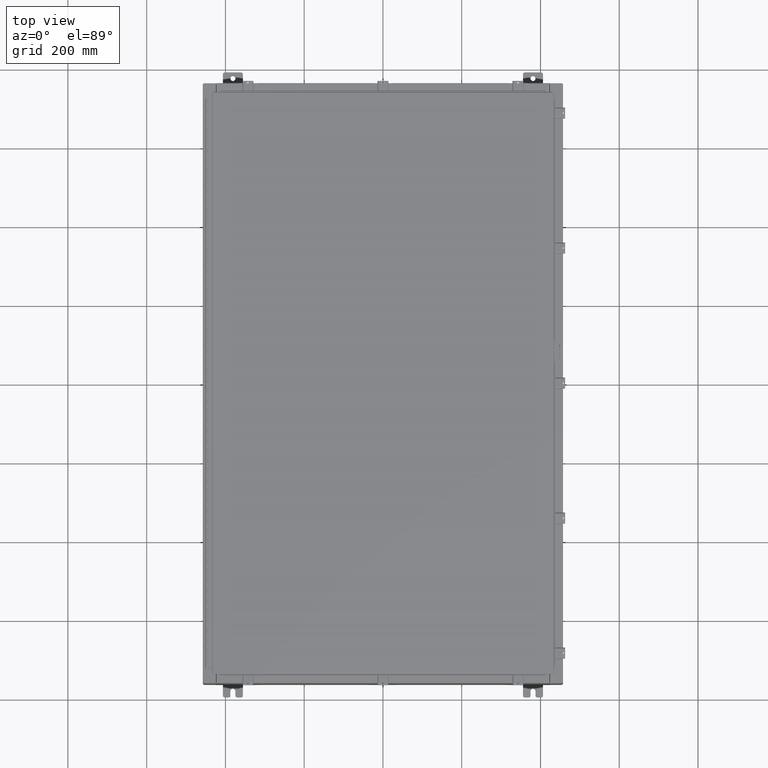
[diagram: clean part render]
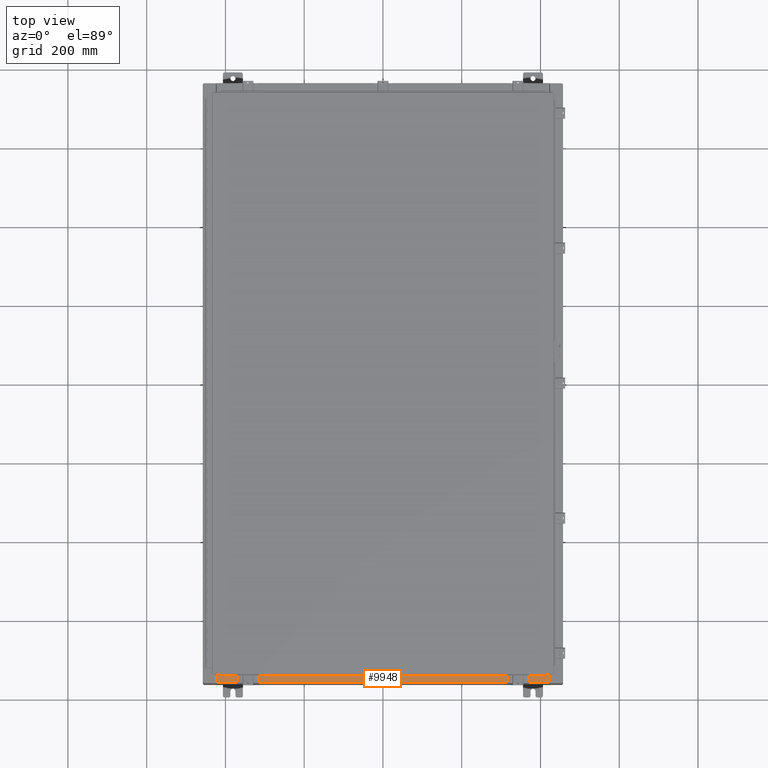
[diagram: same view with one face highlighted and labeled with its STEP entity id]
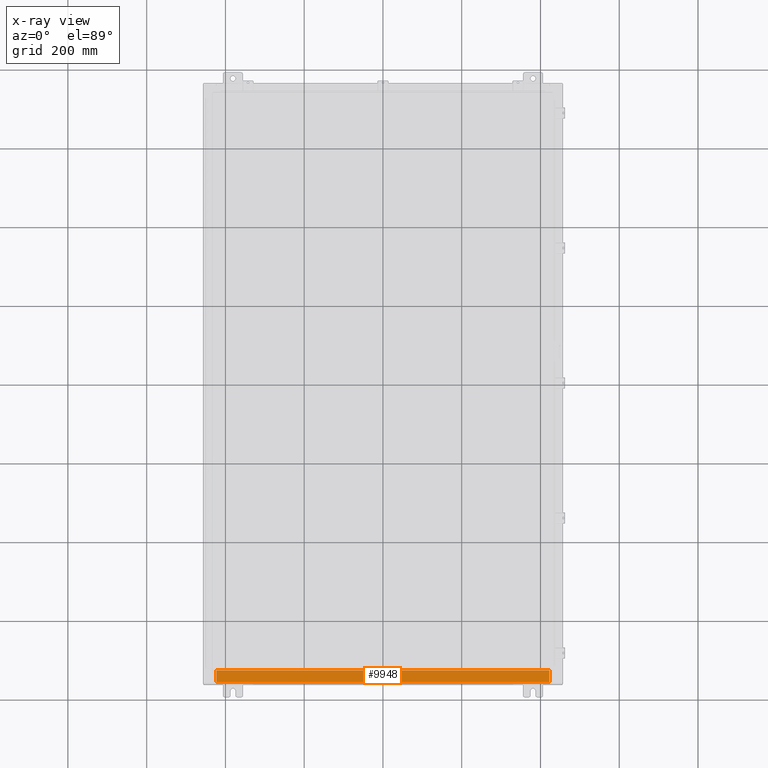
[diagram: x-ray of the same camera — body ghosted, the highlighted face saturated]
A machine part, top view. The second image highlights one B-rep face of the part: STEP entity #9948.
The next image is the same camera in x-ray: the body ghosted, the highlighted face saturated — about 0% of this face is hidden behind the body in this view.
In plain terms, the highlighted planar face has unit normal (-0, -0, 1).
Its self-contained STEP definition (entity closure, byte-faithful):
#523 = DIRECTION ( 'NONE',  ( -1.000000000000000000, 0.0000000000000000000, 0.0000000000000000000 ) ) ;
#979 = LINE ( 'NONE', #23413, #39793 ) ;
#4184 = ORIENTED_EDGE ( 'NONE', *, *, #41030, .F. ) ;
#6513 = VERTEX_POINT ( 'NONE', #36920 ) ;
#9948 = ADVANCED_FACE ( 'NONE', ( #59371 ), #20638, .T. ) ;
#11362 = LINE ( 'NONE', #38567, #45652 ) ;
#11691 = CARTESIAN_POINT ( 'NONE',  ( 0.0000000000000000000, 1.782631094477737600E-014, 5.000000000000000000 ) ) ;
#12350 = ORIENTED_EDGE ( 'NONE', *, *, #51928, .T. ) ;
#15771 = DIRECTION ( 'NONE',  ( 0.0000000000000000000, 3.566381192773190000E-015, 1.000000000000000000 ) ) ;
#16069 = LINE ( 'NONE', #29479, #53404 ) ;
#20328 = AXIS2_PLACEMENT_3D ( 'NONE', #11691, #15771, #28941 ) ;
#20638 = PLANE ( 'NONE',  #20328 ) ;
#20670 = ORIENTED_EDGE ( 'NONE', *, *, #26688, .F. ) ;
#22314 = VECTOR ( 'NONE', #53601, 39.37007874015748100 ) ;
#23413 = CARTESIAN_POINT ( 'NONE',  ( -16.63720000000000000, -0.07469999999999973900, 5.000000000000000000 ) ) ;
#23484 = CARTESIAN_POINT ( 'NONE',  ( 16.63720000000000400, -0.08770000000000047200, 5.000000000000000000 ) ) ;
#26688 = EDGE_CURVE ( 'NONE', #39749, #44401, #979, .T. ) ;
#28941 = DIRECTION ( 'NONE',  ( 0.0000000000000000000, -1.000000000000000000, 3.566381192773190000E-015 ) ) ;
#29479 = CARTESIAN_POINT ( 'NONE',  ( 16.63720000000000400, -1.287299999999999900, 5.000000000000002700 ) ) ;
#36920 = CARTESIAN_POINT ( 'NONE',  ( 16.63720000000000000, -1.287299999999999900, 5.000000000000004400 ) ) ;
#38567 = CARTESIAN_POINT ( 'NONE',  ( 2.880088825576501100E-018, -0.08770000000000081900, 5.000000000000000000 ) ) ;
#39749 = VERTEX_POINT ( 'NONE', #54968 ) ;
#39793 = VECTOR ( 'NONE', #52487, 39.37007874015748100 ) ;
#40749 = EDGE_LOOP ( 'NONE', ( #20670, #44194, #4184, #12350 ) ) ;
#41030 = EDGE_CURVE ( 'NONE', #49449, #6513, #49665, .T. ) ;
#44194 = ORIENTED_EDGE ( 'NONE', *, *, #57265, .F. ) ;
#44401 = VERTEX_POINT ( 'NONE', #47125 ) ;
#45652 = VECTOR ( 'NONE', #62793, 39.37007874015748100 ) ;
#47125 = CARTESIAN_POINT ( 'NONE',  ( -16.63720000000000000, -0.08770000000000081900, 5.000000000000000000 ) ) ;
#48670 = CARTESIAN_POINT ( 'NONE',  ( 16.63720000000000000, -1.300299999999999800, 5.000000000000004400 ) ) ;
#49449 = VERTEX_POINT ( 'NONE', #23484 ) ;
#49665 = LINE ( 'NONE', #48670, #22314 ) ;
#51928 = EDGE_CURVE ( 'NONE', #49449, #44401, #11362, .T. ) ;
#52487 = DIRECTION ( 'NONE',  ( -0.0000000000000000000, 1.000000000000000000, -3.566381192773190000E-015 ) ) ;
#53404 = VECTOR ( 'NONE', #523, 39.37007874015748100 ) ;
#53601 = DIRECTION ( 'NONE',  ( -0.0000000000000000000, -1.000000000000000000, 3.566381192773190000E-015 ) ) ;
#54968 = CARTESIAN_POINT ( 'NONE',  ( -16.63720000000000000, -1.287299999999999200, 5.000000000000004400 ) ) ;
#57265 = EDGE_CURVE ( 'NONE', #6513, #39749, #16069, .T. ) ;
#59371 = FACE_OUTER_BOUND ( 'NONE', #40749, .T. ) ;
#62793 = DIRECTION ( 'NONE',  ( -1.000000000000000000, -3.284023746380717400E-017, 1.171208052571274300E-031 ) ) ;